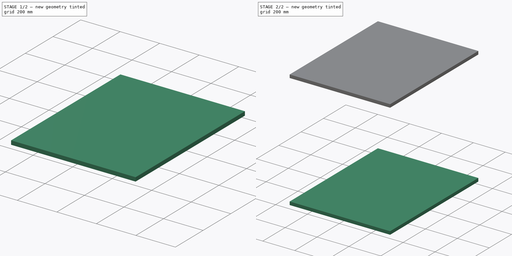
[diagram: build sequence overview — one tinted view per stage of 2, left to right]
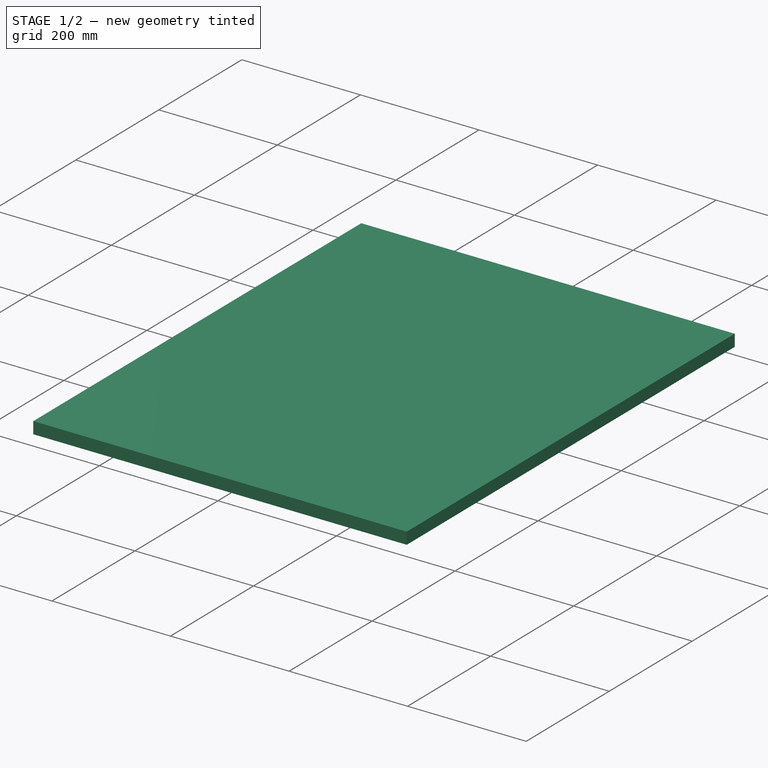
[diagram: stage 1 of 2 — iso view after this stage's code; geometry added in this stage tinted green]
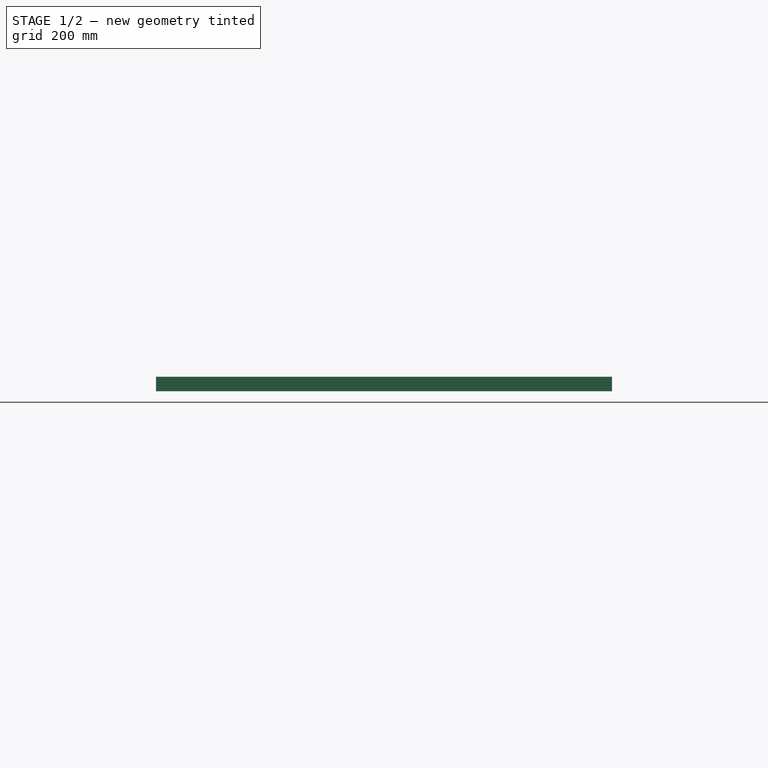
[diagram: stage 1 of 2 — front view after this stage's code; geometry added in this stage tinted green]
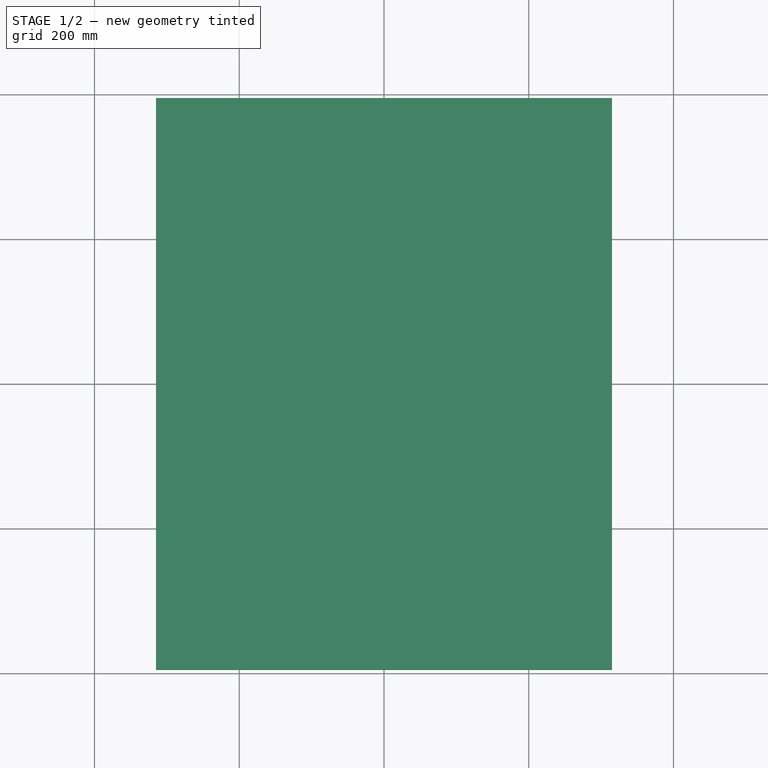
[diagram: stage 1 of 2 — top view after this stage's code; geometry added in this stage tinted green]
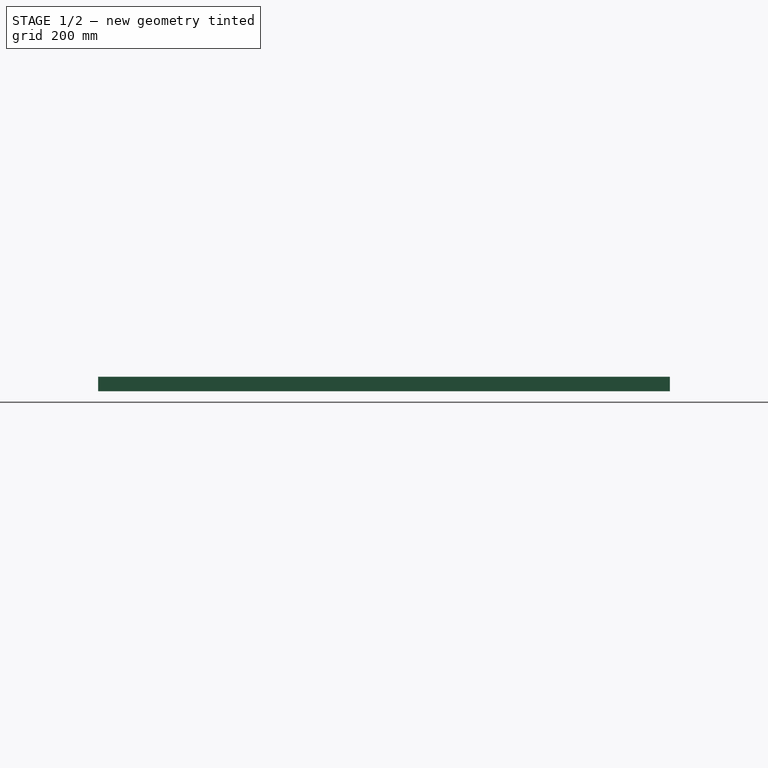
[diagram: stage 1 of 2 — right view after this stage's code; geometry added in this stage tinted green]
FCSTD DOCUMENT  (FreeCAD 0.16R)
Label: cr10schrank
License: All rights reserved
LicenseURL: http://en.wikipedia.org/wiki/All_rights_reserved
objects: App::FeaturePython×6, Sketcher::SketchObject×4, Part::Feature×3, Drawing::FeatureViewPart×3, PartDesign::Pad×2, Drawing::FeatureViewPython×2, Drawing::FeaturePage×1
note: 11 computed .brp shape members not serialized (recipe doc carries the construction recipe); baked Part::Feature solids carry a one-line shape summary decoded from their .brp

FEATURE [Sketcher::SketchObject] Sketch001
  Placement = pos=(0,0,0) rot=(0.57735,0.57735,0.57735;2.0944rad)
  sketch-geometry (4):
    g0: LineSegment StartX=-395 StartY=720 StartZ=0 EndX=395 EndY=720 EndZ=0
    g1: LineSegment StartX=395 StartY=720 StartZ=0 EndX=395 EndY=20 EndZ=0
    g2: LineSegment StartX=395 StartY=20 StartZ=0 EndX=-395 EndY=20 EndZ=0
    g3: LineSegment StartX=-395 StartY=20 StartZ=0 EndX=-395 EndY=720 EndZ=0
  constraints (12):
    c: Coincident(g0,g1)
    c: Coincident(g1,g2)
    c: Coincident(g2,g3)
    c: Coincident(g3,g0)
    c: Horizontal(g0)
    c: Horizontal(g2)
    c: Vertical(g1)
    c: Vertical(g3)
    c: DistanceY(g-1,g2) = 20
    c: DistanceX(g0,g0) = 790
    c: Symmetric(g0,g0,g-2)
    c: DistanceY(g1,g0) = 700
FEATURE [Part::Feature] Pad003  label="Seite002"
  Placement = pos=(-312.738,0,0) rot=(0.57735,0.57735,0.57735;2.0944rad)
  shape: bbox 20 x 790 x 700 mm, 6 faces (baked)
FEATURE [Part::Feature] Pad004  label="SeiteLinks"
  Placement = pos=(294.955,-0.851364,0) rot=(0.57735,0.57735,0.57735;2.0944rad)
  shape: bbox 20 x 790 x 700 mm, 6 faces (baked)
FEATURE [Sketcher::SketchObject] Sketch002
  Placement = pos=(0,0,0) rot=(0.57735,0.57735,0.57735;2.0944rad)
  sketch-geometry (4):
    g0: LineSegment StartX=-395 StartY=740 StartZ=0 EndX=395 EndY=740 EndZ=0
    g1: LineSegment StartX=395 StartY=740 StartZ=0 EndX=395 EndY=720 EndZ=0
    g2: LineSegment StartX=395 StartY=720 StartZ=0 EndX=-395 EndY=720 EndZ=0
    g3: LineSegment StartX=-395 StartY=720 StartZ=0 EndX=-395 EndY=740 EndZ=0
  constraints (12):
    c: Coincident(g0,g1)
    c: Coincident(g1,g2)
    c: Coincident(g2,g3)
    c: Coincident(g3,g0)
    c: Horizontal(g0)
    c: Horizontal(g2)
    c: Vertical(g1)
    c: Vertical(g3)
    c: DistanceX(g0,g0) = 790
    c: DistanceY(g1,g1) = 20
    c: DistanceY(g-1,g2) = 720
    c: Symmetric(g0,g0,g-2)
FEATURE [PartDesign::Pad] Pad005  label="Decke"
  Length = 630
  Length2 = 100
  Midplane = true
  Placement = pos=(0,0,0) rot=(0.57735,0.57735,0.57735;2.0944rad)
  Sketch = -> Sketch002
  Type = 0
FEATURE [Sketcher::SketchObject] Sketch003
  Placement = pos=(0,0,0) rot=(-1,0,0;4.71239rad)
  sketch-geometry (4):
    g0: LineSegment StartX=-295 StartY=720 StartZ=0 EndX=295 EndY=720 EndZ=0
    g1: LineSegment StartX=295 StartY=720 StartZ=0 EndX=295 EndY=20 EndZ=0
    g2: LineSegment StartX=295 StartY=20 StartZ=0 EndX=-295 EndY=20 EndZ=0
    g3: LineSegment StartX=-295 StartY=20 StartZ=0 EndX=-295 EndY=720 EndZ=0
  constraints (12):
    c: Coincident(g0,g1)
    c: Coincident(g1,g2)
    c: Coincident(g2,g3)
    c: Coincident(g3,g0)
    c: Horizontal(g0)
    c: Horizontal(g2)
    c: Vertical(g1)
    c: Vertical(g3)
    c: DistanceX(g0,g0) = 590
    c: Symmetric(g0,g0,g-2)
    c: DistanceY(g1,g0) = 700
    c: DistanceY(g-1,g1) = 20
FEATURE [Part::Feature] Pad007  label="Rückwand"
  Placement = pos=(-5.14879,-364.673,0) rot=(1,0,0;1.5708rad)
  shape: bbox 590 x 20 x 700 mm, 6 faces (baked)
FEATURE [Drawing::FeatureViewPython] ViewPad005  # drawing view (typed FeaturePython)
  Direction = (0,0,0)
  FillStyle = 0
  FontSize = 12
  LineStyle = 0
  LineWidth = 0.35
  Rotation = 0
  Scale = 10
  Source = -> Pad005
  ViewResult = <g id="ViewPad005" transform="rotate(0.0,10.0,10.0) translate(10.0,10.0) scale(10.0,-10.0)"><path id="Pad005_f0000"  d="M -315.0 -395.0 L 315.0 -395.0 L 315.0 395.0 L -315.0 395.0 L -315.0 -395.0 Z " stroke="#191919" stroke-width="0.035 px" style="stroke-width:0.035;stroke-miterlimit:4;stroke-dasharray:none;fill:#cccccc;fill-rule: evenodd "/>\n<path id="Pad005_f0001"  d="M -315.0 395.0 L 315.0 395.0 L 315.0 395.0 L -315.0 395.0 L -315.0 395.0 Z " stroke="#191919" stroke-width="0.035 px" style="stroke-width:0.035;stroke-miterlimit:4;stroke-dasharray:none;fill:#cccccc;fill-rule: evenodd "/>\n<path id="Pad005_f0002"  d="M -315.0 395.0 L 315.0 395.0 L 315.0 -395.0 L -315.0 -395.0 L -315.0 395.0 Z " stroke="#191919" stroke-width="0.035 px" style="stroke-width:0.035;stroke-miterlimit:4;stroke-dasharray:none;fill:#cccccc;fill-rule: evenodd "/>\n<path id="Pad005_f0003"  d="M -315.0 -395.0 L 315.0 -395.0 L 315.0 -395.0 L -315.0 -395.0 L -315.0 -395.0 Z " stroke="#191919" stroke-width="0.035 px" style="stroke-width:0.035;stroke-miterlimit:4;stroke-dasharray:none;fill:#cccccc;fill-rule: evenodd "/>\n<path id="Pad005_f0004"  d="M -315.0 -395.0 L -315.0 395.0 L -315.0 395.0 L -315.0 -395.0 L -315.0 -395.0 Z " stroke="#191919" stroke-width="0.035 px" style="stroke-width:0.035;stroke-miterlimit:4;stroke-dasharray:none;fill:#cccccc;fill-rule: evenodd "/>\n<path id="Pad005_f0005"  d="M 315.0 395.0 L 315.0 395.0 L 315.0 -395.0 L 315.0 -395.0 L 315.0 395.0 Z " stroke="#191919" stroke-width="0.035 px" style="stroke-width:0.035;stroke-miterlimit:4;stroke-dasharray:none;fill:#cccccc;fill-rule: evenodd "/>\n</g>
  Visible = true
  X = 10
  Y = 10
FEATURE [Drawing::FeatureViewPython] ViewPad005002  # drawing view (typed FeaturePython)
  Direction = (0,0,0)
  FillStyle = 0
  FontSize = 12
  LineStyle = 0
  LineWidth = 0.35
  Rotation = 0
  Scale = 10
  Source = -> Pad005
  ViewResult = <g id="ViewPad005002" transform="rotate(0.0,10.0,10.0) translate(10.0,10.0) scale(10.0,-10.0)"><path id="Pad005_f0000"  d="M -315.0 -395.0 L 315.0 -395.0 L 315.0 395.0 L -315.0 395.0 L -315.0 -395.0 Z " stroke="#191919" stroke-width="0.035 px" style="stroke-width:0.035;stroke-miterlimit:4;stroke-dasharray:none;fill:#cccccc;fill-rule: evenodd "/>\n<path id="Pad005_f0001"  d="M -315.0 395.0 L 315.0 395.0 L 315.0 395.0 L -315.0 395.0 L -315.0 395.0 Z " stroke="#191919" stroke-width="0.035 px" style="stroke-width:0.035;stroke-miterlimit:4;stroke-dasharray:none;fill:#cccccc;fill-rule: evenodd "/>\n<path id="Pad005_f0002"  d="M -315.0 395.0 L 315.0 395.0 L 315.0 -395.0 L -315.0 -395.0 L -315.0 395.0 Z " stroke="#191919" stroke-width="0.035 px" style="stroke-width:0.035;stroke-miterlimit:4;stroke-dasharray:none;fill:#cccccc;fill-rule: evenodd "/>\n<path id="Pad005_f0003"  d="M -315.0 -395.0 L 315.0 -395.0 L 315.0 -395.0 L -315.0 -395.0 L -315.0 -395.0 Z " stroke="#191919" stroke-width="0.035 px" style="stroke-width:0.035;stroke-miterlimit:4;stroke-dasharray:none;fill:#cccccc;fill-rule: evenodd "/>\n<path id="Pad005_f0004"  d="M -315.0 -395.0 L -315.0 395.0 L -315.0 395.0 L -315.0 -395.0 L -315.0 -395.0 Z " stroke="#191919" stroke-width="0.035 px" style="stroke-width:0.035;stroke-miterlimit:4;stroke-dasharray:none;fill:#cccccc;fill-rule: evenodd "/>\n<path id="Pad005_f0005"  d="M 315.0 395.0 L 315.0 395.0 L 315.0 -395.0 L 315.0 -395.0 L 315.0 395.0 Z " stroke="#191919" stroke-width="0.035 px" style="stroke-width:0.035;stroke-miterlimit:4;stroke-dasharray:none;fill:#cccccc;fill-rule: evenodd "/>\n</g>
  Visible = true
  X = 10
  Y = 10
FEATURE [App::FeaturePython] Dimension  # Draft dimension (typed FeaturePython)
  Dimline = (314.955,291.149,663)
  Direction = (0,0,0)
  Distance = 790
  End = (314.955,395,720)
  Normal = (1,0,0)
  Start = (314.955,-395,720)
FEATURE [App::FeaturePython] Dimension002  # Draft dimension (typed FeaturePython)
  Dimline = (314.955,-308.524,136.584)
  Direction = (0,0,0)
  Distance = 700.001
  End = (315,-395,20)
  Normal = (1,0,0)
  Start = (314.955,-395.851,720)
FEATURE [App::FeaturePython] Dimension003  # Draft dimension (typed FeaturePython)
  Dimline = (-258,270,0)
  Direction = (0,0,0)
  Distance = 630
  End = (-315,395,0)
  Normal = (0,0,-1)
  Start = (315,395,0)
FEATURE [App::FeaturePython] Dimension004  # Draft dimension (typed FeaturePython)
  Dimline = (247,-371,0)
  Direction = (0,0,0)
  Distance = 790
  End = (315,-395,0)
  Normal = (0,0,-1)
  Start = (315,395,0)
FEATURE [Drawing::FeatureViewPart] Ortho  label="Ortho_0_0"
  Direction = (0,0,1)
  HiddenWidth = 0.15
  LineWidth = 0.35
  Rotation = 0
  Scale = 0.25
  ShowHiddenLines = false
  ShowSmoothLines = false
  Source = -> Pad
  Tolerance = 0.05
  ViewResult = <g id="Ortho_0_0"\n   transform="rotate(0,104.583,133.583) translate(104.583,133.583) scale(0.25,0.25)"\n  >\n<g   stroke="rgb(0, 0, 0)"\n   stroke-width="1.4"\n   stroke-linecap="butt"\n   stroke-linejoin="miter"\n   fill="none"\n   transform="scale(1,-1)"\n  >\n<path id= "1" d=" M -315 395 L 315 395 " />\n<path id= "2" d=" M 315 395 L 315 -395 " />\n<path id= "3" d=" M 315 -395 L -315 -395 " />\n<path id= "4" d=" M -315 -395 L -315 395 " />\n</g>\n</g>
  Visible = true
  X = 104.583
  Y = 133.583
FEATURE [Drawing::FeatureViewPart] Ortho001  label="Ortho_1_0"
  Direction = (1,0,0)
  HiddenWidth = 0.15
  LineWidth = 0.35
  Rotation = 180
  Scale = 0.25
  ShowHiddenLines = false
  ShowSmoothLines = false
  Source = -> Pad
  Tolerance = 0.05
  ViewResult = <g id="Ortho_1_0"\n   transform="rotate(180,204.167,133.583) translate(204.167,133.583) scale(0.25,0.25)"\n  >\n<g   stroke="rgb(0, 0, 0)"\n   stroke-width="1.4"\n   stroke-linecap="butt"\n   stroke-linejoin="miter"\n   fill="none"\n   transform="scale(1,-1)"\n  >\n<path id= "1" d=" M 0 -395 L 20 -395 " />\n<path id= "2" d=" M 0 395 L 20 395 " />\n<path id= "3" d=" M 0 -395 L 0 395 " />\n<path id= "4" d=" M 20 -395 L 20 395 " />\n</g>\n</g>
  Visible = true
  X = 204.167
  Y = 133.583
FEATURE [Drawing::FeatureViewPart] Ortho002  label="Ortho_0_-1"
  Direction = (0,-1,0)
  HiddenWidth = 0.15
  LineWidth = 0.35
  Rotation = 90
  Scale = 0.25
  ShowHiddenLines = false
  ShowSmoothLines = false
  Source = -> Pad
  Tolerance = 0.05
  ViewResult = <g id="Ortho_0_-1"\n   transform="rotate(90,104.583,262.167) translate(104.583,262.167) scale(0.25,0.25)"\n  >\n<g   stroke="rgb(0, 0, 0)"\n   stroke-width="1.4"\n   stroke-linecap="butt"\n   stroke-linejoin="miter"\n   fill="none"\n   transform="scale(1,-1)"\n  >\n<path id= "1" d=" M 0 315 L -20 315 " />\n<path id= "2" d=" M 0 -315 L -20 -315 " />\n<path id= "3" d=" M 0 315 L 0 -315 " />\n<path id= "4" d=" M -20 315 L -20 -315 " />\n</g>\n</g>
  Visible = true
  X = 104.583
  Y = 262.167
FEATURE [Drawing::FeaturePage] Page
  EditableTexts = AUTHOR NAME | CREATION DATE | SUPERVISOR NAME | CHECK DATE | SCALE | WEIGHT | NUMBER | SHEET | TITLE | SUBTITLE
  Group = -> [Ortho,Ortho001,Ortho002]
FEATURE [App::FeaturePython] Dimension005  # Draft dimension (typed FeaturePython)
  Dimline = (-219,-384.673,33)
  Direction = (0,0,0)
  Distance = 700
  End = (-295,-384.673,20)
  Normal = (0,-1,0)
  Start = (-295,-384.673,720)
FEATURE [App::FeaturePython] Dimension006  # Draft dimension (typed FeaturePython)
  Dimline = (236.851,-384.673,625)
  Direction = (0,0,0)
  Distance = 590
  End = (289.851,-384.673,720)
  Normal = (0,-1,0)
  Start = (-300.149,-384.673,720)
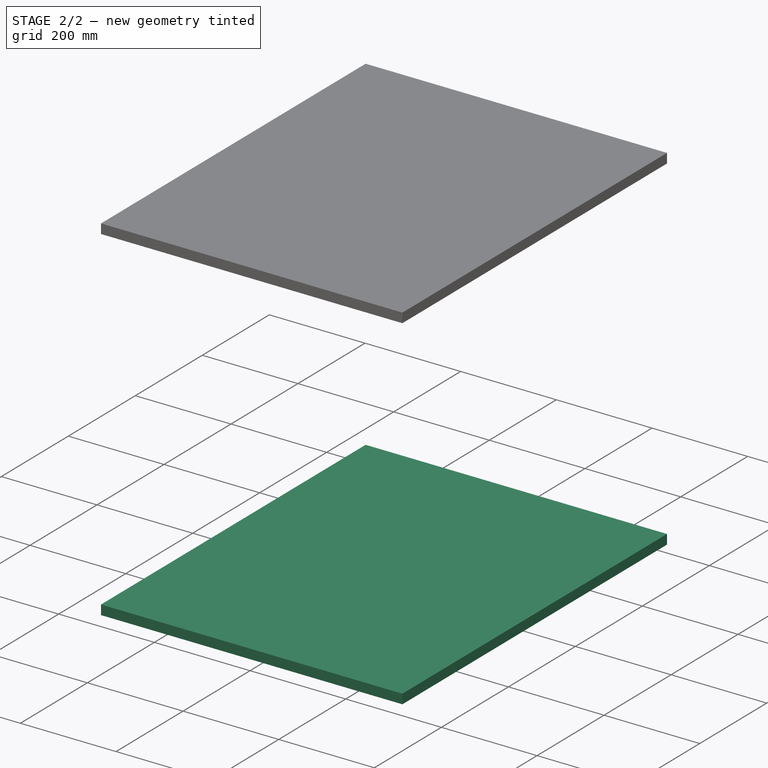
[diagram: stage 2 of 2 — iso view after this stage's code; geometry added in this stage tinted green]
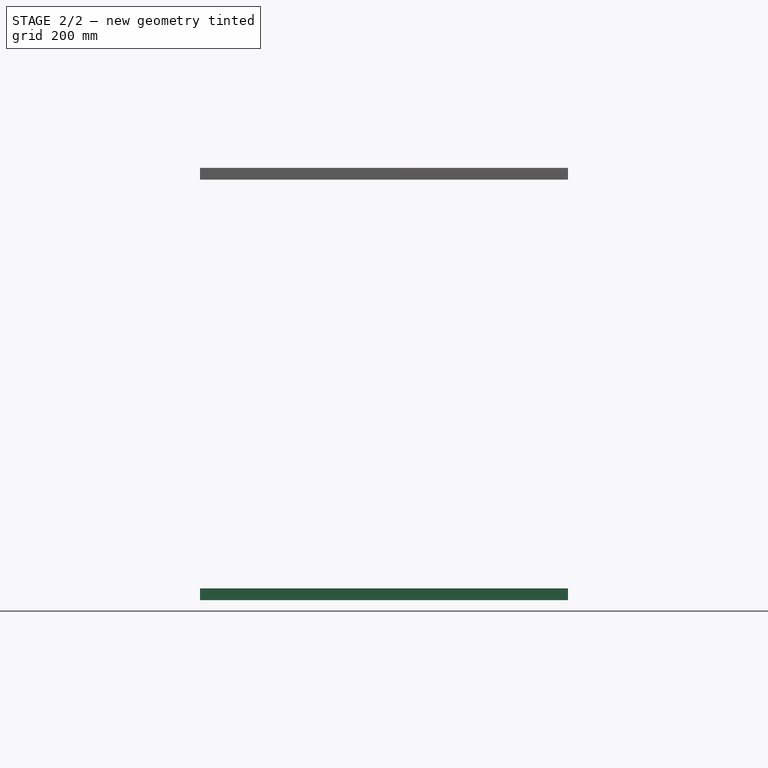
[diagram: stage 2 of 2 — front view after this stage's code; geometry added in this stage tinted green]
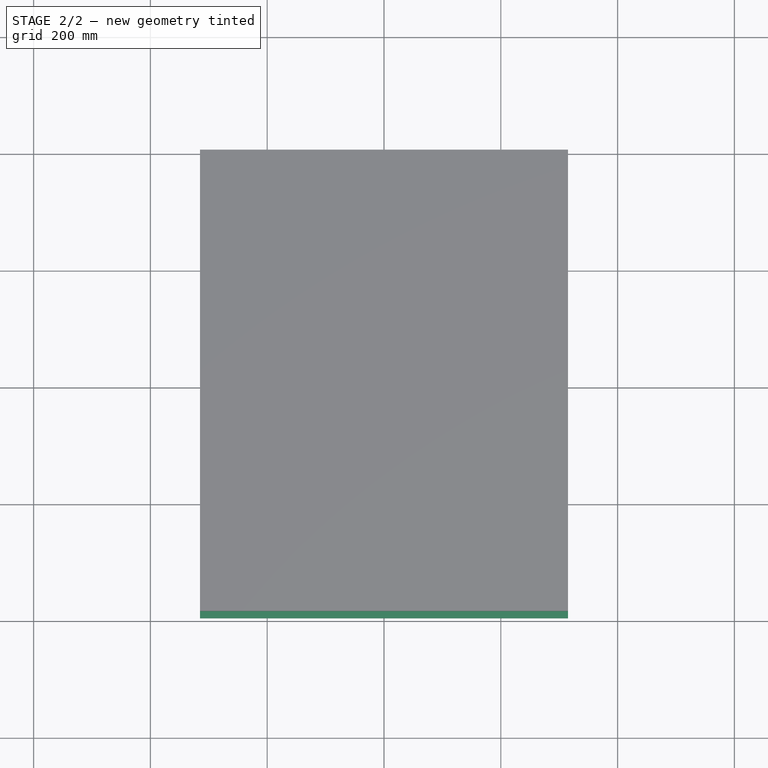
[diagram: stage 2 of 2 — top view after this stage's code; geometry added in this stage tinted green]
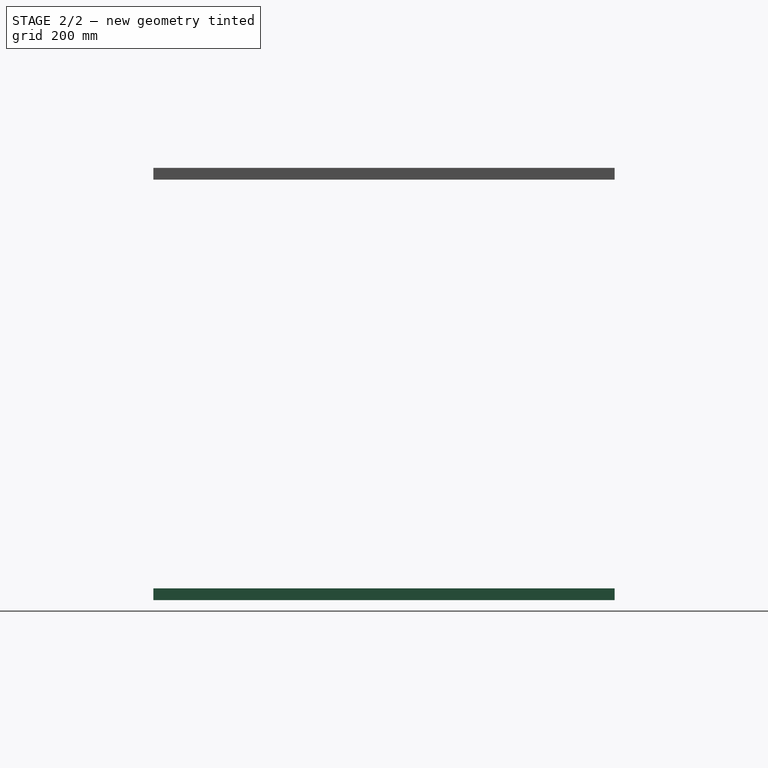
[diagram: stage 2 of 2 — right view after this stage's code; geometry added in this stage tinted green]
FEATURE [Sketcher::SketchObject] Sketch
  sketch-geometry (4):
    g0: LineSegment StartX=-315 StartY=395 StartZ=0 EndX=315 EndY=395 EndZ=0
    g1: LineSegment StartX=315 StartY=395 StartZ=0 EndX=315 EndY=-395 EndZ=0
    g2: LineSegment StartX=315 StartY=-395 StartZ=0 EndX=-315 EndY=-395 EndZ=0
    g3: LineSegment StartX=-315 StartY=-395 StartZ=0 EndX=-315 EndY=395 EndZ=0
  constraints (12):
    c: Coincident(g0,g1)
    c: Coincident(g1,g2)
    c: Coincident(g2,g3)
    c: Coincident(g3,g0)
    c: Horizontal(g0)
    c: Horizontal(g2)
    c: Vertical(g1)
    c: Vertical(g3)
    c: DistanceX(g0,g0) = 630
    c: DistanceY(g1,g1) = 790
    c: Symmetric(g2,g1,g-2)
    c: Symmetric(g0,g1,g-1)
FEATURE [PartDesign::Pad] Pad  label="Boden"
  Length = 20
  Length2 = 100
  Sketch = -> Sketch
  Type = 0
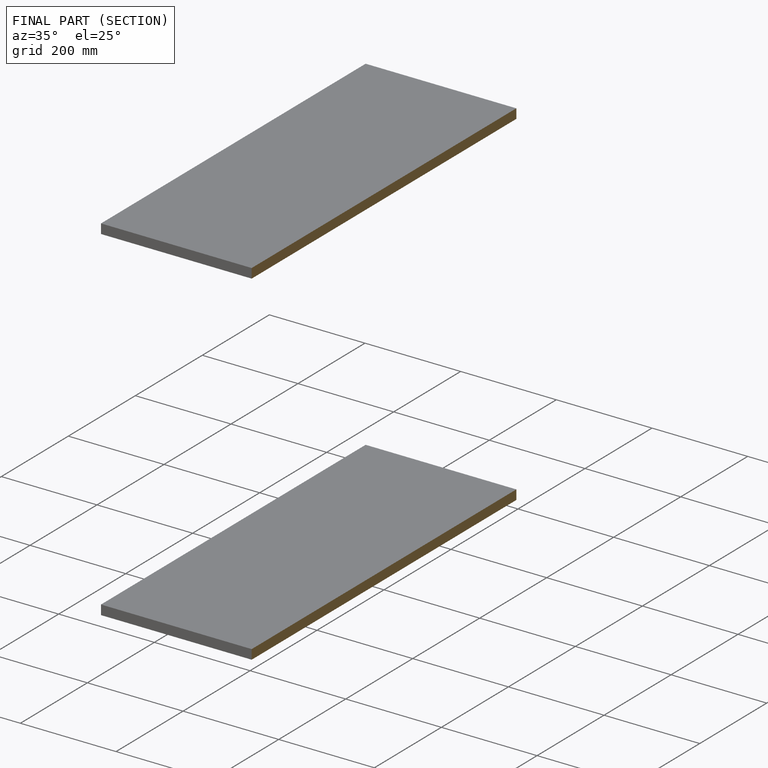
[diagram: finished part — half-section view (interior)]
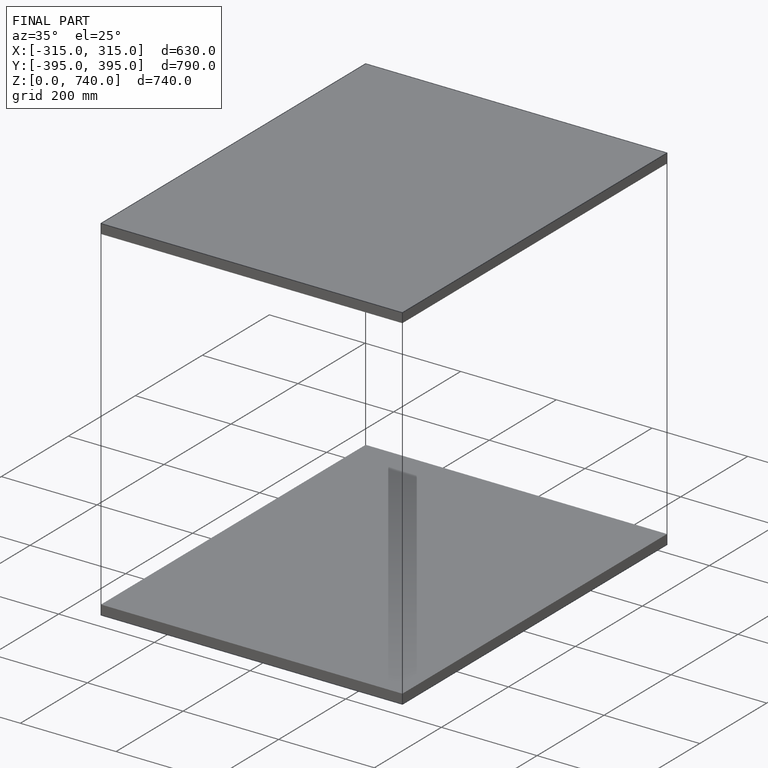
[diagram: finished part — iso view with bounding-box wireframe]
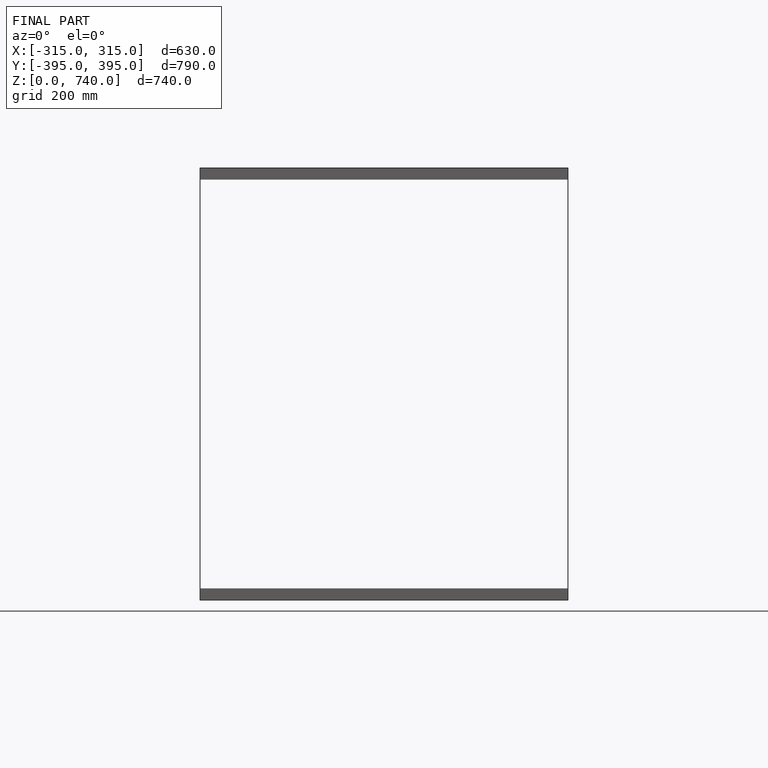
[diagram: finished part — front view with bounding-box wireframe]
